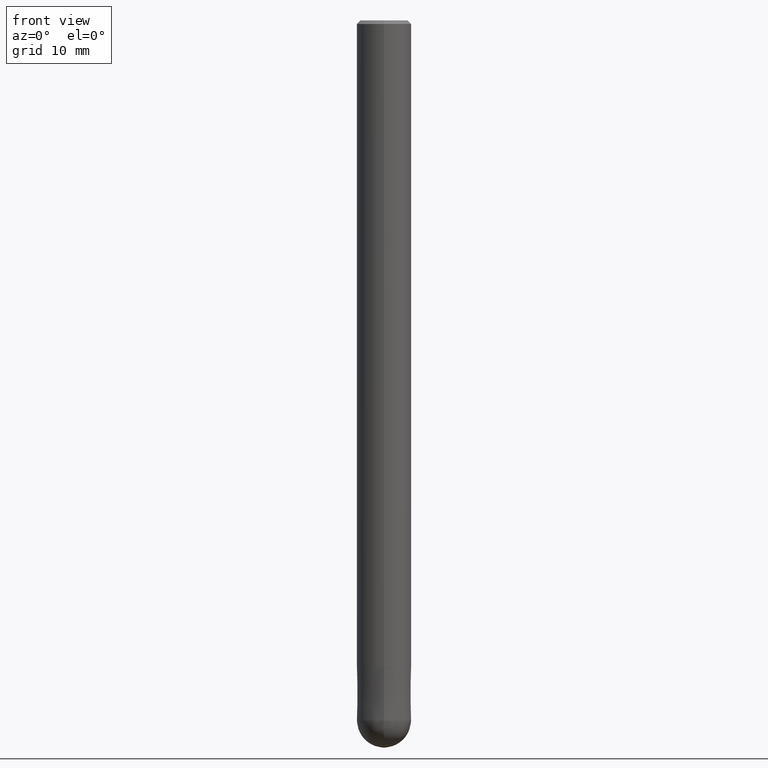
[diagram: clean part render]
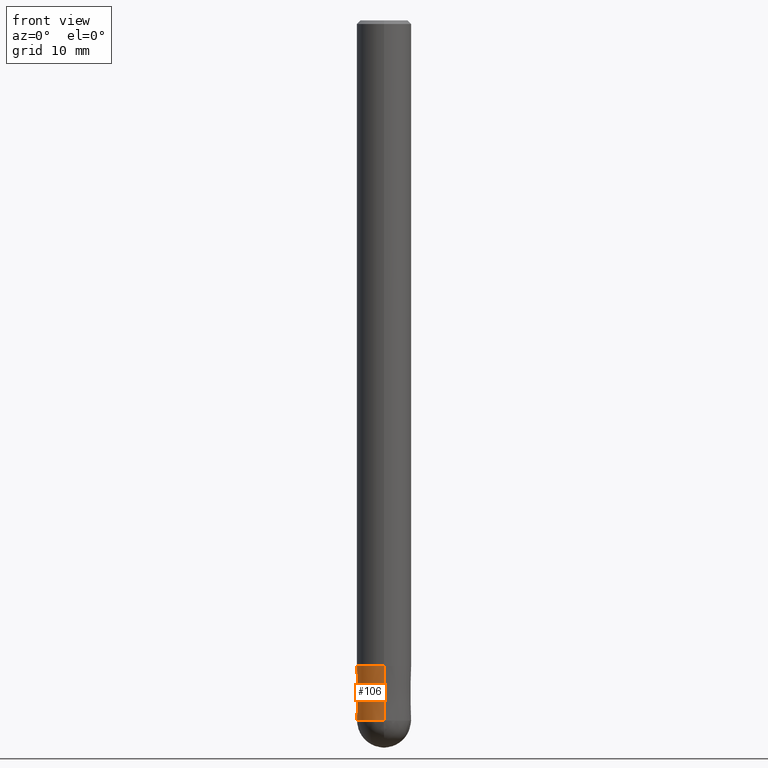
[diagram: same view with one face highlighted and labeled with its STEP entity id]
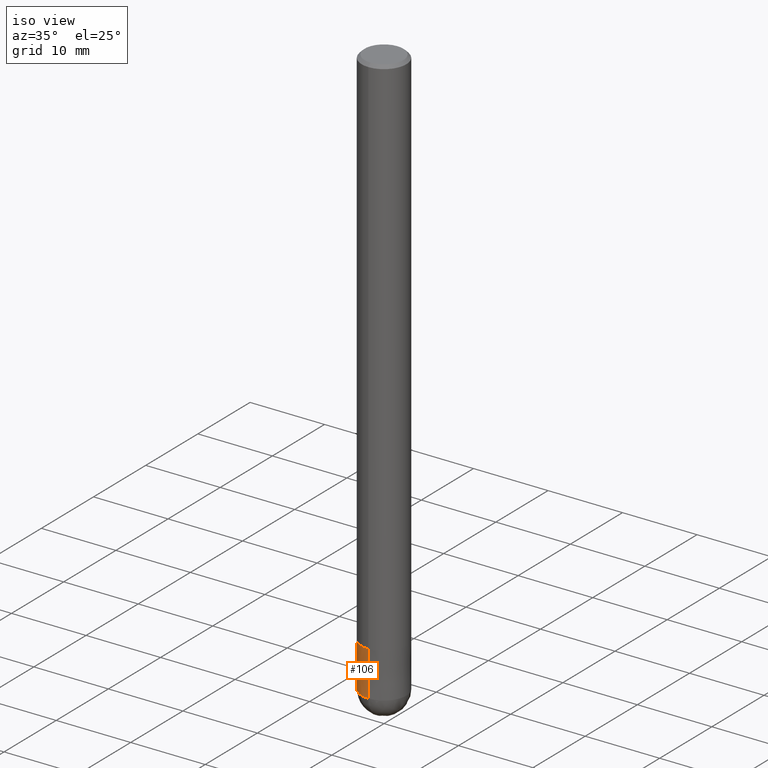
[diagram: same view with one face highlighted and labeled with its STEP entity id]
A machine part, front view. The second image highlights one B-rep face of the part: STEP entity #106.
A second angle (iso view) of the same face is appended — the face is thin or edge-on in the first view.
In plain terms, the highlighted conical surface has half-angle 0.001 deg.
Its self-contained STEP definition (entity closure, byte-faithful):
#64=VERTEX_POINT('',#156);
#76=EDGE_CURVE('',#136,#64,#169,.T.);
#84=VERTEX_POINT('',#179);
#102=EDGE_CURVE('',#64,#84,#200,.T.);
#106=ADVANCED_FACE('',(#204),#205,.T.);
#118=EDGE_CURVE('',#124,#84,#220,.T.);
#124=VERTEX_POINT('',#227);
#134=EDGE_CURVE('',#124,#136,#237,.T.);
#136=VERTEX_POINT('',#239);
#156=CARTESIAN_POINT('',(0.0,2.9999,-71.0));
#169=CIRCLE('',#264,2.9999);
#179=CARTESIAN_POINT('',(0.0,3.0,-77.0));
#200=LINE('',#303,#304);
#204=FACE_OUTER_BOUND('',#309,.T.);
#205=CONICAL_SURFACE('',#310,2.99995,1.66666666652326E-005);
#220=CIRCLE('',#331,3.0);
#227=CARTESIAN_POINT('',(3.67381906146713E-016,-3.0,-77.0));
#237=LINE('',#351,#352);
#239=CARTESIAN_POINT('',(3.67369660083175E-016,-2.9999,-71.0));
#264=AXIS2_PLACEMENT_3D('',#365,#366,#367);
#303=CARTESIAN_POINT('',(-3.67375783114944E-016,2.99995,-74.0));
#304=VECTOR('',#422,1.0);
#309=EDGE_LOOP('',(#427,#428,#429,#430));
#310=AXIS2_PLACEMENT_3D('',#431,#432,#433);
#331=AXIS2_PLACEMENT_3D('',#453,#454,#455);
#351=CARTESIAN_POINT('',(3.67375783114944E-016,-2.99995,-74.0));
#352=VECTOR('',#469,1.0);
#365=CARTESIAN_POINT('',(0.0,0.0,-71.0));
#366=DIRECTION('',(0.0,0.0,-1.0));
#367=DIRECTION('',(0.0,1.0,0.0));
#422=DIRECTION('',(-2.04101058943386E-021,1.6666666664461E-005,-0.999999999861111));
#427=ORIENTED_EDGE('',*,*,#102,.T.);
#428=ORIENTED_EDGE('',*,*,#118,.F.);
#429=ORIENTED_EDGE('',*,*,#134,.T.);
#430=ORIENTED_EDGE('',*,*,#76,.T.);
#431=CARTESIAN_POINT('',(0.0,0.0,-74.0));
#432=DIRECTION('',(0.0,-0.0,-1.0));
#433=DIRECTION('',(0.0,1.0,0.0));
#453=CARTESIAN_POINT('',(0.0,0.0,-77.0));
#454=DIRECTION('',(0.0,0.0,-1.0));
#455=DIRECTION('',(0.0,1.0,0.0));
#469=DIRECTION('',(-2.04101058943386E-021,1.6666666664461E-005,0.999999999861111));